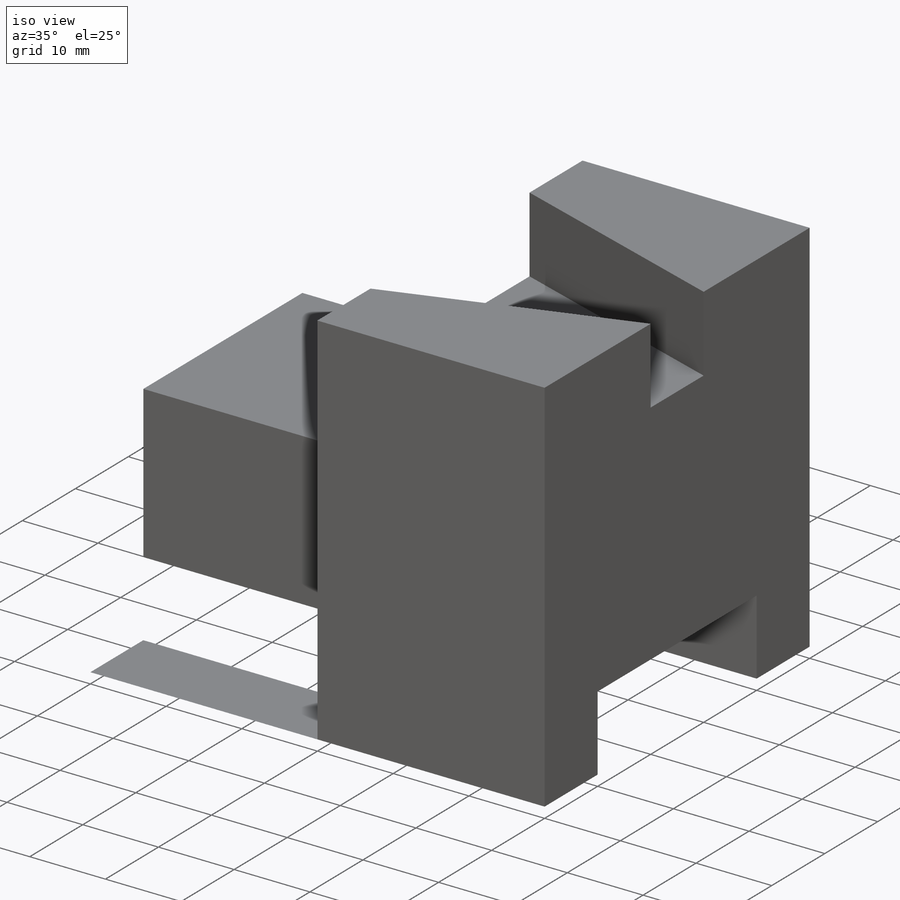
[diagram: iso view]
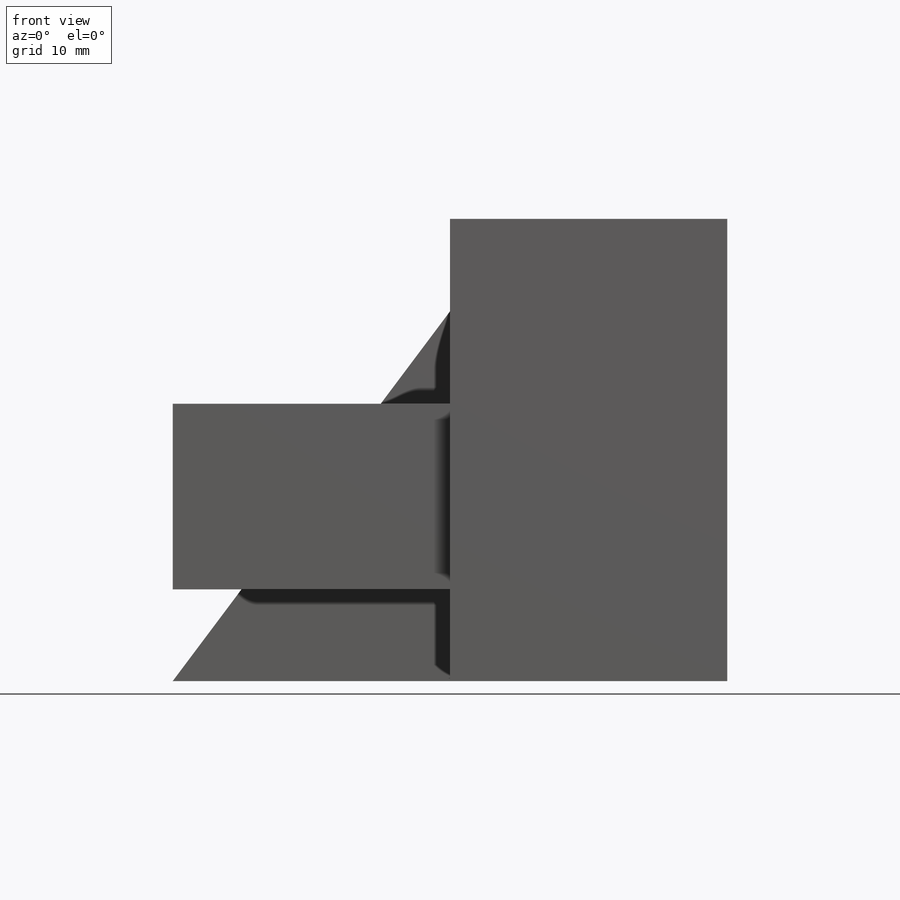
[diagram: front view]
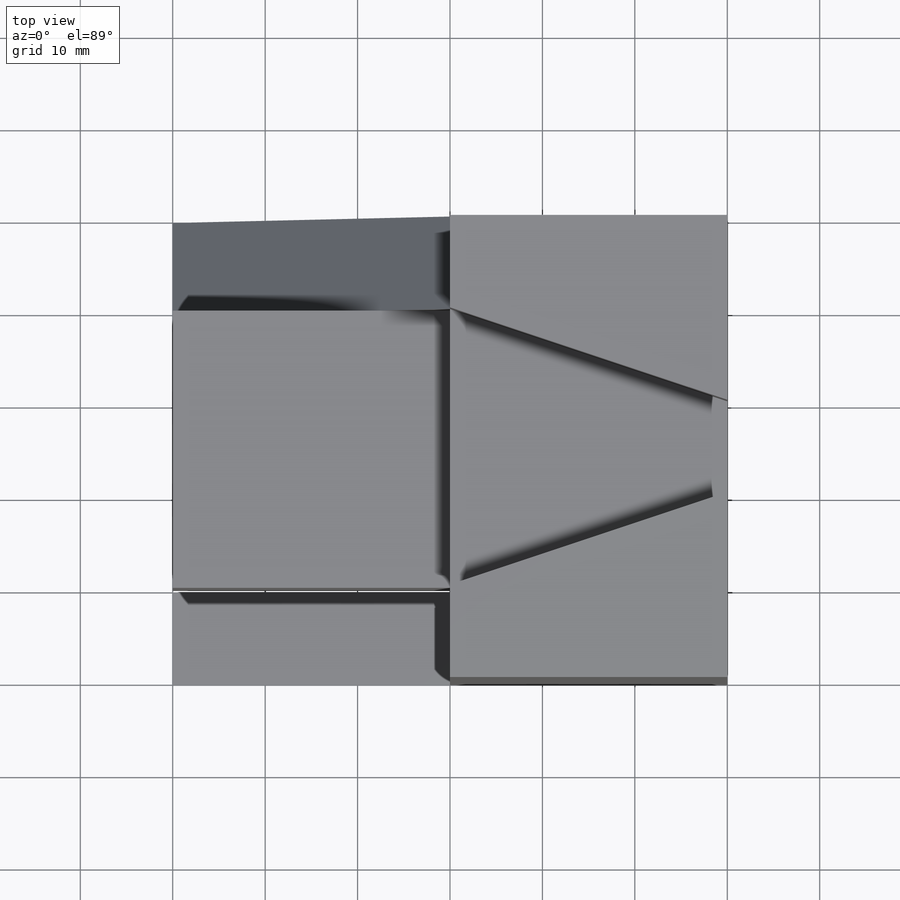
[diagram: top view]
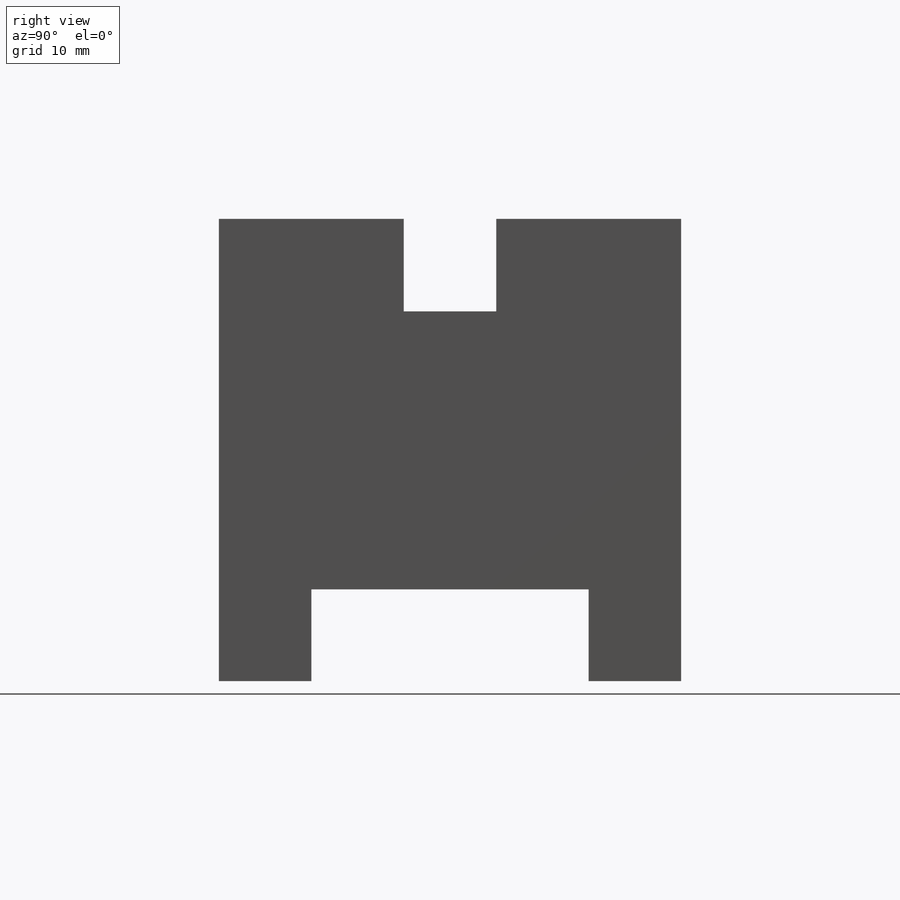
[diagram: right view]
SOLIDWORKS PART (.sldprt)
format: sldprt  version: not decoded by parser v0  size: 393,216 bytes
history: native  units: mm
features: sketch x22, extrude x13, cut_extrude x9, plane x2, material x1 (+13 scaffold rows collapsed)
feature tree (60):
  scaffold x13  (default folders/planes/origin — collapsed)
  material  "Material <not specified>"
  sketch  "Sketch1"  dims[c1.D1=~56.643545mm c1.D2=~37.952602mm c2.D1=30.0mm c2.D2=50.0mm]
  extrude  "Boss-Extrude1"  Depth=50mm
  sketch  "Sketch2"  dims[c1.D1=~12.904726mm c1.D2=~31.470482mm c2.D1=30.0mm c2.D2=20.0mm c2.D3=10.0mm]
  extrude  "Boss-Extrude2"  Depth=30mm
  sketch  "Sketch3"  dims[D1=20.0mm D2=30.0mm]
  cut_extrude  "Cut-Extrude1"  Depth=10mm
  sketch  "Sketch4"  dims[D1=20.0mm D2=30.0mm]
  extrude  "Boss-Extrude3"  Depth=10mm
  sketch  "Sketch6"  dims[D1=50.0mm D2=30.0mm]
  cut_extrude  "Cut-Extrude2"  Depth=10mm
  plane  "Plane1"  Offset=40mm
  plane  "Plane2"  Offset=30mm
  sketch  "Sketch9"  dims[D1=30.0mm D2=40.0mm]
  extrude  "Boss-Extrude6"  Depth=30mm
  sketch  "Sketch10"  dims[c1.D1=~13.575998mm c1.D2=30.0mm c2.D1=30.0mm c2.D2=10.0mm]
  extrude  "Boss-Extrude8"  Depth=5mm
  sketch  "Sketch11"  dims[D1=10.0mm D2=30.0mm]
  extrude  "Boss-Extrude9"  Depth=5mm
  sketch  "Sketch12"  dims[D1=10.0mm]
  extrude  "Boss-Extrude10"  Depth=10mm
  sketch  "Sketch13"  dims[D1=20.0mm D2=10.0mm D3=10.0mm]
  extrude  "Boss-Extrude11"  Depth=10mm
  sketch  "Sketch14"  dims[c1.D1=~9.874143mm c1.D2=~34.484465mm c2.D1=10.0mm c2.D2=30.0mm c2.D3=10.0mm c2.D4=10.0mm]
  cut_extrude  "Cut-Extrude3"  Depth=30mm
  sketch  "Sketch15"  dims[D1=12.5mm]
  cut_extrude  "Cut-Extrude4"  Depth=20mm
  sketch  "Sketch19"  dims[D1=~14.176928mm D2=~36.844767mm]
  extrude  "Boss-Extrude18"  Depth=10mm
  sketch  "Sketch20"  dims[c1.D1=~13.241169mm c1.D2=~29.746939mm c2.D1=30.0mm c2.D2=10.0mm]
  extrude  "Boss-Extrude19"  Depth=10mm
  sketch  "Sketch22"  dims[D1=~14.176928mm D2=~36.844767mm]
  cut_extrude  "Cut-Extrude6"  Depth=9.75mm
  sketch  "Sketch25"  dims[D1=~14.176928mm D2=~36.844767mm]
  cut_extrude  "Cut-Extrude14"  Depth=0.12mm
  sketch  "Sketch26"  dims[D1=~14.176928mm D2=~36.844767mm]
  cut_extrude  "Cut-Extrude15"  Depth=0.12mm
  sketch  "Sketch29"  dims[D1=~14.176928mm D2=~36.844767mm]
  extrude  "Boss-Extrude21"  Depth=0.05mm
  sketch  "Sketch31"  dims[D1=30.0mm D2=60.0mm]
  extrude  "Boss-Extrude25"  Depth=0.08mm
  sketch  "Sketch32"  dims[D1=10.0mm D2=30.0mm]
  cut_extrude  "Cut-Extrude22"  Depth=10mm
  sketch  "Sketch38"  dims[D1=9.92mm D2=10.0mm]
  cut_extrude  "Cut-Extrude26"  Depth=0.001mm
  sketch  "Sketch39"  dims[c1.D1=~10.127398mm c1.D2=~37.217783mm c2.D1=30.0mm c2.D2=10.0mm]
  extrude  "Boss-Extrude31"  Depth=0.001mm
decode coverage: 44 of 44 modeling features carry decoded parameters
note: ~ marks probable driven/reference dimensions
note: suppression state not decoded; provenance and decode notes live in map.json
